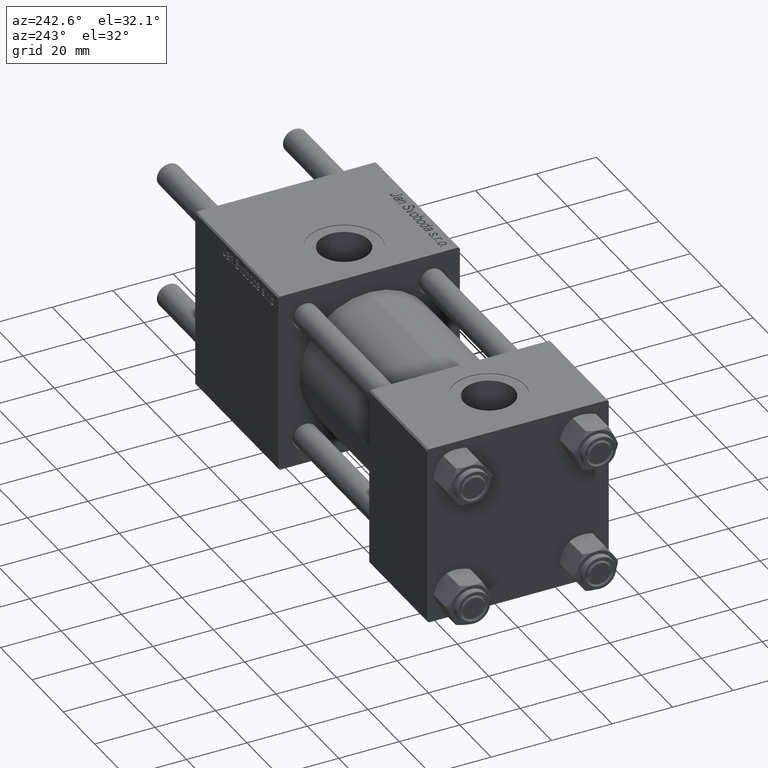
[diagram: clean part render]
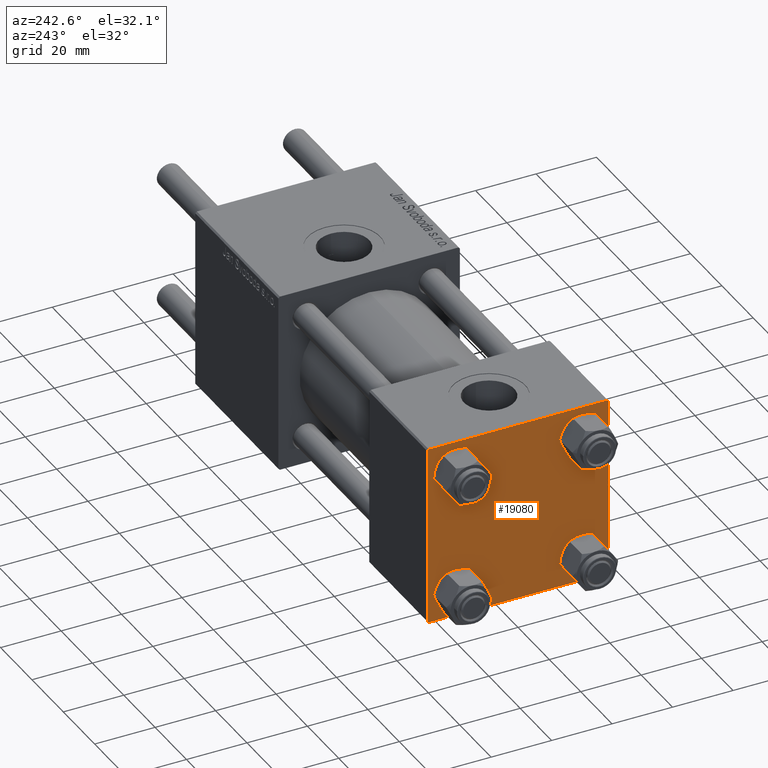
[diagram: same view with one face highlighted and labeled with its STEP entity id]
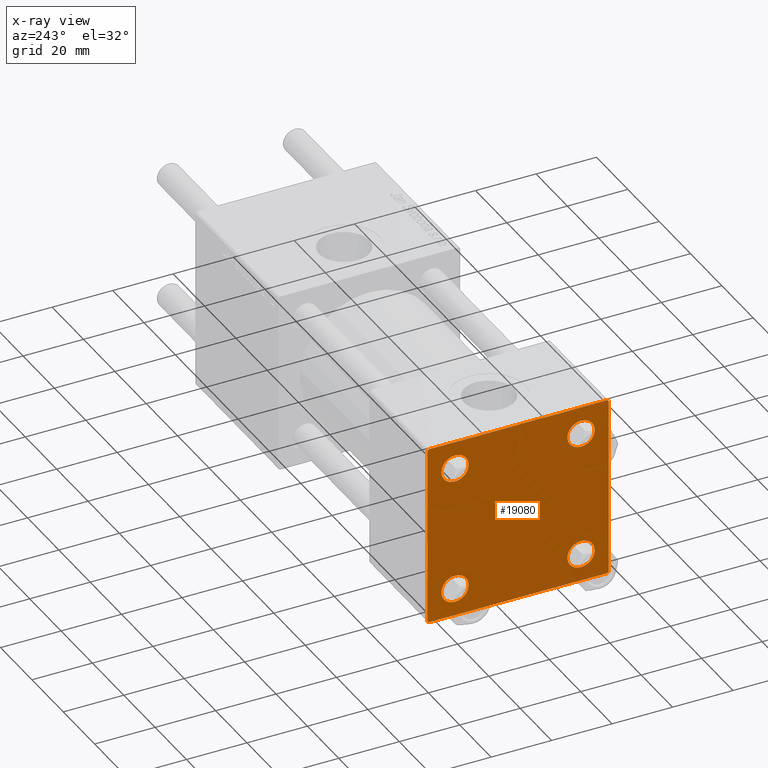
[diagram: x-ray of the same camera — body ghosted, the highlighted face saturated]
A machine part, auxiliary view. The second image highlights one B-rep face of the part: STEP entity #19080.
The next image is the same camera in x-ray: the body ghosted, the highlighted face saturated — about 0% of this face is hidden behind the body in this view.
In plain terms, the highlighted planar face has unit normal (-1, 0, 0).
Its self-contained STEP definition (entity closure, byte-faithful):
#564 = CARTESIAN_POINT ( 'NONE',  ( 0.000000000000000000, 20.84999999999999787, -16.34999999999998366 ) ) ;
#1255 = EDGE_CURVE ( 'NONE', #2923, #44319, #26279, .T. ) ;
#1391 = LINE ( 'NONE', #1692, #23165 ) ;
#1631 = VECTOR ( 'NONE', #38975, 1000.000000000000000 ) ;
#1692 = CARTESIAN_POINT ( 'NONE',  ( 0.000000000000000000, 29.74999999999957723, -29.75000000000040501 ) ) ;
#1938 = FACE_BOUND ( 'NONE', #13551, .T. ) ;
#2375 = DIRECTION ( 'NONE',  ( 1.000000000000000000, -0.000000000000000000, 0.000000000000000000 ) ) ;
#2419 = EDGE_LOOP ( 'NONE', ( #33635, #24784 ) ) ;
#2465 = DIRECTION ( 'NONE',  ( 0.000000000000000000, 0.000000000000000000, 1.000000000000000000 ) ) ;
#2855 = LINE ( 'NONE', #43997, #46002 ) ;
#2869 = CARTESIAN_POINT ( 'NONE',  ( 0.000000000000000000, 29.99999999999999289, -30.00000000000000000 ) ) ;
#2923 = VERTEX_POINT ( 'NONE', #8290 ) ;
#3954 = ORIENTED_EDGE ( 'NONE', *, *, #1255, .F. ) ;
#5285 = CARTESIAN_POINT ( 'NONE',  ( 0.000000000000000000, -29.49999999999998579, 29.99999999999999289 ) ) ;
#6234 = CIRCLE ( 'NONE', #21378, 4.500000000000017764 ) ;
#6428 = CIRCLE ( 'NONE', #39552, 4.500000000000017764 ) ;
#6687 = ORIENTED_EDGE ( 'NONE', *, *, #43559, .F. ) ;
#7306 = LINE ( 'NONE', #2869, #1631 ) ;
#8006 = CARTESIAN_POINT ( 'NONE',  ( 0.000000000000000000, 20.84999999999999787, -20.85000000000000142 ) ) ;
#8149 = CARTESIAN_POINT ( 'NONE',  ( 0.000000000000000000, 20.84999999999999787, -25.35000000000001918 ) ) ;
#8290 = CARTESIAN_POINT ( 'NONE',  ( 0.000000000000000000, 29.49999999999999289, 30.00000000000000000 ) ) ;
#8506 = DIRECTION ( 'NONE',  ( 0.000000000000000000, 0.000000000000000000, 1.000000000000000000 ) ) ;
#9536 = CARTESIAN_POINT ( 'NONE',  ( 0.000000000000000000, -20.84999999999999076, 25.35000000000002274 ) ) ;
#10128 = ORIENTED_EDGE ( 'NONE', *, *, #24531, .T. ) ;
#10715 = DIRECTION ( 'NONE',  ( 0.000000000000000000, 0.000000000000000000, 1.000000000000000000 ) ) ;
#10775 = VERTEX_POINT ( 'NONE', #8149 ) ;
#11060 = VECTOR ( 'NONE', #20413, 1000.000000000000114 ) ;
#11219 = VERTEX_POINT ( 'NONE', #44768 ) ;
#12282 = DIRECTION ( 'NONE',  ( -1.000000000000000000, 0.000000000000000000, -0.000000000000000000 ) ) ;
#13500 = LINE ( 'NONE', #27127, #47810 ) ;
#13551 = EDGE_LOOP ( 'NONE', ( #53586, #41801 ) ) ;
#13687 = EDGE_CURVE ( 'NONE', #35819, #43603, #55155, .T. ) ;
#13844 = VERTEX_POINT ( 'NONE', #17082 ) ;
#13885 = DIRECTION ( 'NONE',  ( 0.000000000000000000, 0.000000000000000000, 1.000000000000000000 ) ) ;
#14161 = DIRECTION ( 'NONE',  ( 1.000000000000000000, -0.000000000000000000, 0.000000000000000000 ) ) ;
#14533 = CARTESIAN_POINT ( 'NONE',  ( 0.000000000000000000, 20.84999999999999787, 20.85000000000000142 ) ) ;
#14874 = CARTESIAN_POINT ( 'NONE',  ( 0.000000000000000000, 20.84999999999999787, 20.85000000000000142 ) ) ;
#15527 = CIRCLE ( 'NONE', #51443, 4.500000000000017764 ) ;
#15590 = DIRECTION ( 'NONE',  ( -0.000000000000000000, -0.7071067811865574537, -0.7071067811865376918 ) ) ;
#15593 = CARTESIAN_POINT ( 'NONE',  ( 0.000000000000000000, -20.84999999999999076, -16.34999999999998721 ) ) ;
#15842 = FACE_BOUND ( 'NONE', #2419, .T. ) ;
#16016 = VERTEX_POINT ( 'NONE', #54293 ) ;
#16084 = ORIENTED_EDGE ( 'NONE', *, *, #13687, .T. ) ;
#16113 = LINE ( 'NONE', #40670, #30552 ) ;
#16231 = CARTESIAN_POINT ( 'NONE',  ( 0.000000000000000000, 20.84999999999999787, -20.85000000000000142 ) ) ;
#16739 = EDGE_CURVE ( 'NONE', #43366, #10775, #15527, .T. ) ;
#17082 = CARTESIAN_POINT ( 'NONE',  ( 0.000000000000000000, -29.50000000000000000, -30.00000000000000711 ) ) ;
#17250 = ORIENTED_EDGE ( 'NONE', *, *, #53320, .T. ) ;
#17359 = AXIS2_PLACEMENT_3D ( 'NONE', #49695, #32506, #13885 ) ;
#17374 = CARTESIAN_POINT ( 'NONE',  ( 0.000000000000000000, 29.99999999999999289, 30.00000000000000000 ) ) ;
#17925 = EDGE_LOOP ( 'NONE', ( #16084, #44212 ) ) ;
#19080 = ADVANCED_FACE ( 'NONE', ( #42488, #15842, #1938, #19985, #33899 ), #29451, .T. ) ;
#19627 = CARTESIAN_POINT ( 'NONE',  ( 0.000000000000000000, 20.84999999999999787, 16.34999999999998366 ) ) ;
#19985 = FACE_BOUND ( 'NONE', #25780, .T. ) ;
#20310 = AXIS2_PLACEMENT_3D ( 'NONE', #52821, #12282, #44249 ) ;
#20413 = DIRECTION ( 'NONE',  ( 0.000000000000000000, -0.7071067811865474617, 0.7071067811865474617 ) ) ;
#20743 = VERTEX_POINT ( 'NONE', #48618 ) ;
#21378 = AXIS2_PLACEMENT_3D ( 'NONE', #45241, #14161, #46113 ) ;
#21584 = ORIENTED_EDGE ( 'NONE', *, *, #34280, .T. ) ;
#21987 = EDGE_CURVE ( 'NONE', #10775, #43366, #42203, .T. ) ;
#23165 = VECTOR ( 'NONE', #15590, 999.9999999999998863 ) ;
#23192 = DIRECTION ( 'NONE',  ( 1.000000000000000000, -0.000000000000000000, 0.000000000000000000 ) ) ;
#23476 = EDGE_CURVE ( 'NONE', #16016, #20743, #2855, .T. ) ;
#23513 = VERTEX_POINT ( 'NONE', #43401 ) ;
#24531 = EDGE_CURVE ( 'NONE', #23513, #13844, #7306, .T. ) ;
#24633 = EDGE_LOOP ( 'NONE', ( #49596, #17250, #10128, #36775, #6687, #48042, #3954, #53508 ) ) ;
#24784 = ORIENTED_EDGE ( 'NONE', *, *, #48184, .T. ) ;
#25060 = EDGE_CURVE ( 'NONE', #13844, #33071, #47329, .T. ) ;
#25659 = EDGE_CURVE ( 'NONE', #46932, #44319, #30640, .T. ) ;
#25780 = EDGE_LOOP ( 'NONE', ( #21584, #48917 ) ) ;
#25911 = CARTESIAN_POINT ( 'NONE',  ( 0.000000000000000000, -30.00000000000000000, 29.49999999999999289 ) ) ;
#26279 = LINE ( 'NONE', #17374, #43665 ) ;
#26537 = CARTESIAN_POINT ( 'NONE',  ( 0.000000000000000000, -30.00000000000000000, -29.50000000000001776 ) ) ;
#27127 = CARTESIAN_POINT ( 'NONE',  ( 0.000000000000000000, 29.74999999999999645, 29.74999999999999645 ) ) ;
#29451 = PLANE ( 'NONE',  #20310 ) ;
#29775 = EDGE_CURVE ( 'NONE', #53746, #11219, #37550, .T. ) ;
#30227 = DIRECTION ( 'NONE',  ( 1.000000000000000000, -0.000000000000000000, 0.000000000000000000 ) ) ;
#30552 = VECTOR ( 'NONE', #39799, 1000.000000000000000 ) ;
#30640 = LINE ( 'NONE', #48678, #50763 ) ;
#30676 = DIRECTION ( 'NONE',  ( 0.000000000000000000, 0.000000000000000000, -1.000000000000000000 ) ) ;
#31021 = CARTESIAN_POINT ( 'NONE',  ( 0.000000000000000000, -20.84999999999999076, -20.85000000000000497 ) ) ;
#31766 = VERTEX_POINT ( 'NONE', #19627 ) ;
#32506 = DIRECTION ( 'NONE',  ( 1.000000000000000000, -0.000000000000000000, 0.000000000000000000 ) ) ;
#32585 = DIRECTION ( 'NONE',  ( 0.000000000000000000, 0.000000000000000000, 1.000000000000000000 ) ) ;
#33071 = VERTEX_POINT ( 'NONE', #26537 ) ;
#33112 = CARTESIAN_POINT ( 'NONE',  ( 0.000000000000000000, 20.84999999999999787, 25.35000000000001918 ) ) ;
#33635 = ORIENTED_EDGE ( 'NONE', *, *, #29775, .T. ) ;
#33710 = AXIS2_PLACEMENT_3D ( 'NONE', #14533, #2375, #32585 ) ;
#33899 = FACE_OUTER_BOUND ( 'NONE', #24633, .T. ) ;
#34023 = CARTESIAN_POINT ( 'NONE',  ( 0.000000000000000000, -29.75000000000001066, -29.75000000000001066 ) ) ;
#34280 = EDGE_CURVE ( 'NONE', #45725, #31766, #6428, .T. ) ;
#35745 = DIRECTION ( 'NONE',  ( 1.000000000000000000, -0.000000000000000000, 0.000000000000000000 ) ) ;
#35819 = VERTEX_POINT ( 'NONE', #9536 ) ;
#36775 = ORIENTED_EDGE ( 'NONE', *, *, #25060, .T. ) ;
#37550 = CIRCLE ( 'NONE', #56419, 4.500000000000017764 ) ;
#37719 = DIRECTION ( 'NONE',  ( 0.000000000000000000, 0.000000000000000000, 1.000000000000000000 ) ) ;
#37984 = CARTESIAN_POINT ( 'NONE',  ( 0.000000000000000000, -20.84999999999999076, -20.85000000000000497 ) ) ;
#38975 = DIRECTION ( 'NONE',  ( 0.000000000000000000, -1.000000000000000000, -1.156482317317871725E-16 ) ) ;
#39336 = AXIS2_PLACEMENT_3D ( 'NONE', #8006, #30227, #37719 ) ;
#39552 = AXIS2_PLACEMENT_3D ( 'NONE', #14874, #23192, #10715 ) ;
#39799 = DIRECTION ( 'NONE',  ( 0.000000000000000000, 0.000000000000000000, -1.000000000000000000 ) ) ;
#40670 = CARTESIAN_POINT ( 'NONE',  ( 0.000000000000000000, -30.00000000000000000, 29.99999999999999289 ) ) ;
#41075 = CIRCLE ( 'NONE', #48629, 4.500000000000017764 ) ;
#41801 = ORIENTED_EDGE ( 'NONE', *, *, #21987, .T. ) ;
#42203 = CIRCLE ( 'NONE', #39336, 4.500000000000017764 ) ;
#42488 = FACE_BOUND ( 'NONE', #17925, .T. ) ;
#43010 = DIRECTION ( 'NONE',  ( 1.000000000000000000, -0.000000000000000000, 0.000000000000000000 ) ) ;
#43366 = VERTEX_POINT ( 'NONE', #564 ) ;
#43401 = CARTESIAN_POINT ( 'NONE',  ( 0.000000000000000000, 29.49999999999997868, -30.00000000000000000 ) ) ;
#43559 = EDGE_CURVE ( 'NONE', #46932, #33071, #16113, .T. ) ;
#43603 = VERTEX_POINT ( 'NONE', #44517 ) ;
#43665 = VECTOR ( 'NONE', #44591, 1000.000000000000000 ) ;
#43997 = CARTESIAN_POINT ( 'NONE',  ( 0.000000000000000000, 29.99999999999999289, 30.00000000000000000 ) ) ;
#44212 = ORIENTED_EDGE ( 'NONE', *, *, #57525, .T. ) ;
#44249 = DIRECTION ( 'NONE',  ( -0.000000000000000000, 0.000000000000000000, 1.000000000000000000 ) ) ;
#44252 = DIRECTION ( 'NONE',  ( -0.000000000000000000, 0.7071067811865474617, 0.7071067811865474617 ) ) ;
#44319 = VERTEX_POINT ( 'NONE', #5285 ) ;
#44517 = CARTESIAN_POINT ( 'NONE',  ( 0.000000000000000000, -20.84999999999999076, 16.34999999999998721 ) ) ;
#44591 = DIRECTION ( 'NONE',  ( 0.000000000000000000, -1.000000000000000000, -1.156482317317871725E-16 ) ) ;
#44768 = CARTESIAN_POINT ( 'NONE',  ( 0.000000000000000000, -20.84999999999999076, -25.35000000000002274 ) ) ;
#45241 = CARTESIAN_POINT ( 'NONE',  ( 0.000000000000000000, -20.84999999999999076, 20.85000000000000497 ) ) ;
#45725 = VERTEX_POINT ( 'NONE', #33112 ) ;
#46002 = VECTOR ( 'NONE', #30676, 1000.000000000000000 ) ;
#46113 = DIRECTION ( 'NONE',  ( 0.000000000000000000, 0.000000000000000000, 1.000000000000000000 ) ) ;
#46932 = VERTEX_POINT ( 'NONE', #25911 ) ;
#47329 = LINE ( 'NONE', #34023, #11060 ) ;
#47810 = VECTOR ( 'NONE', #49601, 1000.000000000000114 ) ;
#47901 = DIRECTION ( 'NONE',  ( 0.000000000000000000, 0.000000000000000000, 1.000000000000000000 ) ) ;
#48042 = ORIENTED_EDGE ( 'NONE', *, *, #25659, .T. ) ;
#48184 = EDGE_CURVE ( 'NONE', #11219, #53746, #41075, .T. ) ;
#48618 = CARTESIAN_POINT ( 'NONE',  ( 0.000000000000000000, 29.99999999999999289, -29.50000000000000000 ) ) ;
#48629 = AXIS2_PLACEMENT_3D ( 'NONE', #37984, #43010, #2465 ) ;
#48678 = CARTESIAN_POINT ( 'NONE',  ( -0.000000000000000000, -29.74999999999999645, 29.74999999999999645 ) ) ;
#48917 = ORIENTED_EDGE ( 'NONE', *, *, #58397, .T. ) ;
#49596 = ORIENTED_EDGE ( 'NONE', *, *, #23476, .T. ) ;
#49601 = DIRECTION ( 'NONE',  ( 0.000000000000000000, 0.7071067811865474617, -0.7071067811865474617 ) ) ;
#49695 = CARTESIAN_POINT ( 'NONE',  ( 0.000000000000000000, -20.84999999999999076, 20.85000000000000497 ) ) ;
#50763 = VECTOR ( 'NONE', #44252, 1000.000000000000114 ) ;
#51443 = AXIS2_PLACEMENT_3D ( 'NONE', #16231, #52342, #47901 ) ;
#51611 = CIRCLE ( 'NONE', #33710, 4.500000000000017764 ) ;
#52342 = DIRECTION ( 'NONE',  ( 1.000000000000000000, -0.000000000000000000, 0.000000000000000000 ) ) ;
#52821 = CARTESIAN_POINT ( 'NONE',  ( 0.000000000000000000, 0.000000000000000000, 0.000000000000000000 ) ) ;
#53320 = EDGE_CURVE ( 'NONE', #20743, #23513, #1391, .T. ) ;
#53508 = ORIENTED_EDGE ( 'NONE', *, *, #56965, .T. ) ;
#53586 = ORIENTED_EDGE ( 'NONE', *, *, #16739, .T. ) ;
#53746 = VERTEX_POINT ( 'NONE', #15593 ) ;
#54293 = CARTESIAN_POINT ( 'NONE',  ( 0.000000000000000000, 29.99999999999999289, 29.50000000000000000 ) ) ;
#55155 = CIRCLE ( 'NONE', #17359, 4.500000000000017764 ) ;
#56419 = AXIS2_PLACEMENT_3D ( 'NONE', #31021, #35745, #8506 ) ;
#56965 = EDGE_CURVE ( 'NONE', #2923, #16016, #13500, .T. ) ;
#57525 = EDGE_CURVE ( 'NONE', #43603, #35819, #6234, .T. ) ;
#58397 = EDGE_CURVE ( 'NONE', #31766, #45725, #51611, .T. ) ;